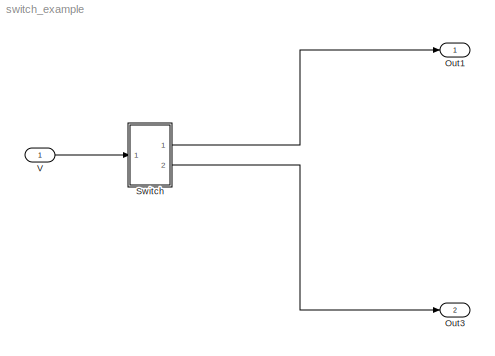
MODEL switch_example
KIND model
BLOCK [Outport] Out1
  IconDisplay = Port number
  SID = 16
BLOCK [Outport] Out3
  IconDisplay = Port number
  Port = 2
  SID = 18
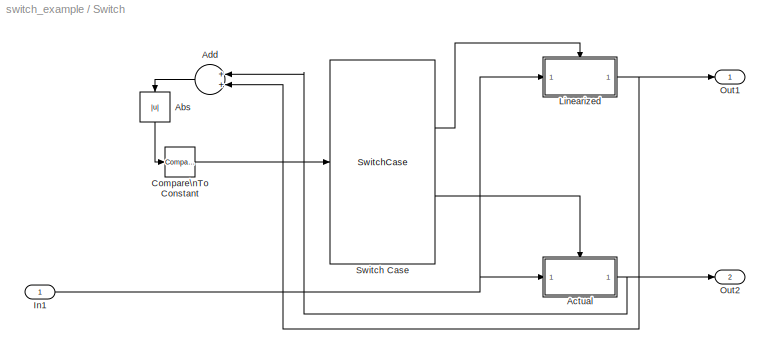
BLOCK [SubSystem] Switch
  Ports = [1, 2]
  RequestExecContextInheritance = off
  SID = 28
BLOCK [Abs] Switch/Abs
  SID = 27
  SaturateOnIntegerOverflow = off
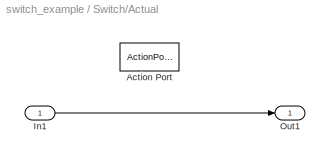
BLOCK [SubSystem] Switch/Actual
  Ports = [1, 1, 0, 0, 0, 0, 0, 1]
  RequestExecContextInheritance = off
  SID = 3
  TreatAsAtomicUnit = on
BLOCK [ActionPort] Switch/Actual/Action Port
  ActionType = default
  SID = 5
BLOCK [Inport] Switch/Actual/In1
  IconDisplay = Port number
  SID = 4
BLOCK [Outport] Switch/Actual/Out1
  IconDisplay = Port number
  SID = 6
BLOCK [Sum] Switch/Add
  InputSameDT = off
  OutDataTypeStr = Inherit: Inherit via internal rule
  Ports = [2, 1]
  SID = 19
  SaturateOnIntegerOverflow = off
BLOCK [Reference] Switch/Compare\nTo Constant  REF=simulink/Logic and Bit\nOperations/Compare\nTo Constant
  OutDataTypeStr = boolean
  Ports = [1, 1]
  SID = 26
  SourceBlock = simulink/Logic and Bit\nOperations/Compare\nTo Constant
  SourceType = Compare To Constant
  ZeroCross = on
  const = 10
  relop = <=
BLOCK [Inport] Switch/In1
  IconDisplay = Port number
  SID = 29
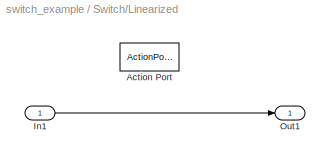
BLOCK [SubSystem] Switch/Linearized
  Ports = [1, 1, 0, 0, 0, 0, 0, 1]
  RequestExecContextInheritance = off
  SID = 11
  TreatAsAtomicUnit = on
BLOCK [ActionPort] Switch/Linearized/Action Port
  ActionType = case
  SID = 13
BLOCK [Inport] Switch/Linearized/In1
  IconDisplay = Port number
  SID = 12
BLOCK [Outport] Switch/Linearized/Out1
  IconDisplay = Port number
  SID = 14
BLOCK [Outport] Switch/Out1
  IconDisplay = Port number
  SID = 30
BLOCK [Outport] Switch/Out2
  IconDisplay = Port number
  Port = 2
  SID = 31
BLOCK [SwitchCase] Switch/Switch Case
  CaseConditions = {1,}
  Ports = [1, 2]
  SID = 15
BLOCK [Inport] V
  IconDisplay = Port number
  SID = 2
LINE Switch/Abs:1 -> Switch/Compare\nTo Constant:1
LINE Switch/Actual/In1:1 -> Switch/Actual/Out1:1
NET Switch/Actual:1 -> Switch/Add:1, Switch/Out2:1
LINE Switch/Add:1 -> Switch/Abs:1
LINE Switch/Compare\nTo Constant:1 -> Switch/Switch Case:1
NET Switch/In1:1 -> Switch/Actual:1, Switch/Linearized:1
LINE Switch/Linearized/In1:1 -> Switch/Linearized/Out1:1
NET Switch/Linearized:1 -> Switch/Add:2, Switch/Out1:1
LINE Switch/Switch Case:1 -> Switch/Linearized:ifaction
LINE Switch/Switch Case:2 -> Switch/Actual:ifaction
LINE Switch:1 -> Out1:1
LINE Switch:2 -> Out3:1
LINE V:1 -> Switch:1
note: NET lines group one-source signal fan-out (src -> all destinations, sorted); 1:1 wires keep LINE
